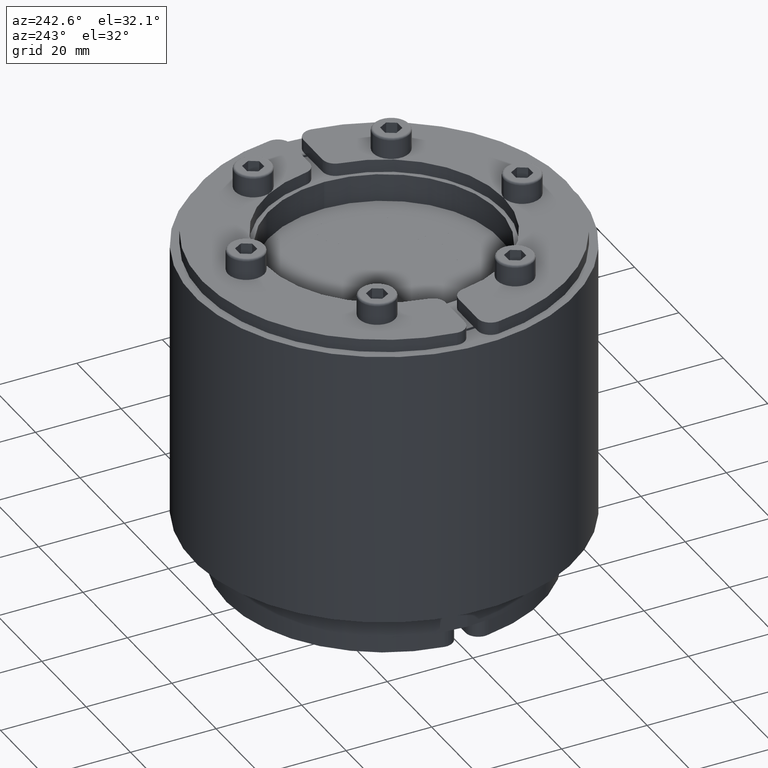
[diagram: clean part render]
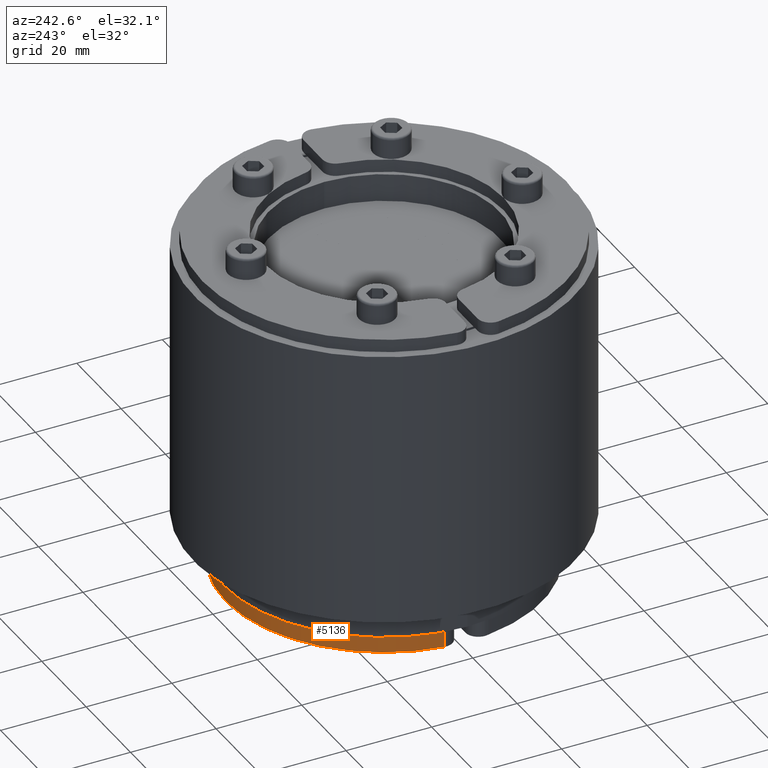
[diagram: same view with one face highlighted and labeled with its STEP entity id]
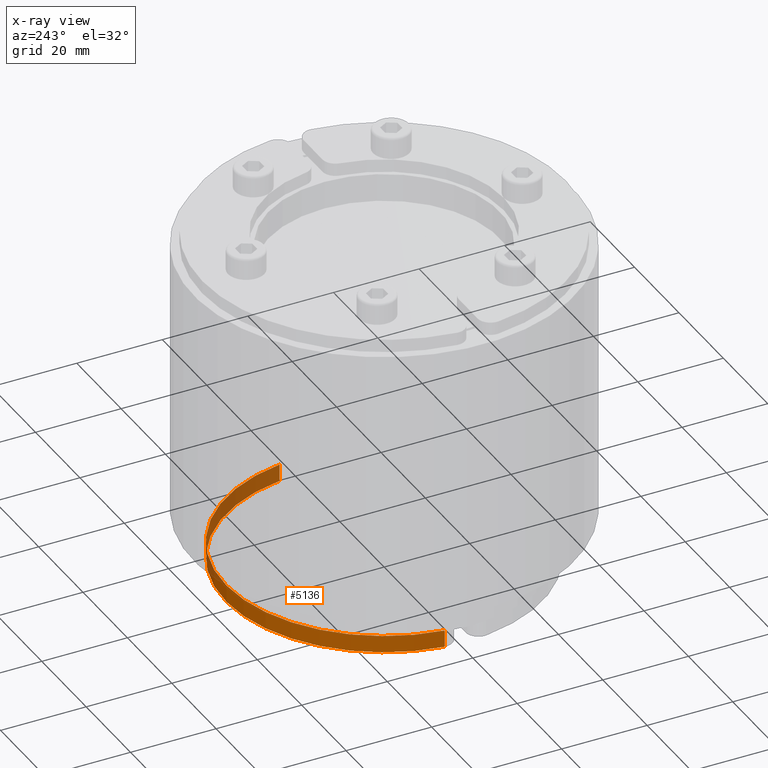
[diagram: x-ray of the same camera — body ghosted, the highlighted face saturated]
A machine part, auxiliary view. The second image highlights one B-rep face of the part: STEP entity #5136.
The next image is the same camera in x-ray: the body ghosted, the highlighted face saturated — about 27% of this face is hidden behind the body in this view.
In plain terms, the highlighted cylindrical surface (partial cylindrical patch) has radius 37 mm, axis along (-0, 0, -1).
Its self-contained STEP definition (entity closure, byte-faithful):
#5076=CARTESIAN_POINT('',(76.868884107341614,33.462043935240352,0.0));
#5077=VERTEX_POINT('',#5076);
#5086=CARTESIAN_POINT('',(76.868884107341614,33.462043935240352,4.0));
#5087=VERTEX_POINT('',#5086);
#5095=CARTESIAN_POINT('',(76.868884107341614,33.462043935240352,0.0));
#5096=DIRECTION('',(0.0,0.0,1.0));
#5097=VECTOR('',#5096,4.0);
#5098=LINE('',#5095,#5097);
#5099=EDGE_CURVE('',#5077,#5087,#5098,.T.);
#5104=CARTESIAN_POINT('',(40.273814220591603,38.921060328683666,0.0));
#5105=DIRECTION('',(0.0,0.0,1.0));
#5106=DIRECTION('',(0.991202652822286,0.13235294117647,0.0));
#5107=AXIS2_PLACEMENT_3D('',#5104,#5105,#5106);
#5108=CYLINDRICAL_SURFACE('',#5107,37.0);
#5109=CARTESIAN_POINT('',(3.599316066166989,34.024001505154288,0.0));
#5110=VERTEX_POINT('',#5109);
#5111=CARTESIAN_POINT('',(40.273814220591603,38.921060328683666,0.0));
#5112=DIRECTION('',(0.0,0.0,-1.0));
#5113=DIRECTION('',(0.991202652822286,0.13235294117647,0.0));
#5114=AXIS2_PLACEMENT_3D('',#5111,#5112,#5113);
#5115=CIRCLE('',#5114,37.0);
#5116=EDGE_CURVE('',#5077,#5110,#5115,.T.);
#5117=ORIENTED_EDGE('',*,*,#5116,.F.);
#5118=ORIENTED_EDGE('',*,*,#5099,.T.);
#5119=CARTESIAN_POINT('',(3.599316066166989,34.024001505154288,4.0));
#5120=VERTEX_POINT('',#5119);
#5121=CARTESIAN_POINT('',(40.273814220591603,38.921060328683666,4.0));
#5122=DIRECTION('',(0.0,0.0,1.0));
#5123=DIRECTION('',(0.991202652822286,0.13235294117647,0.0));
#5124=AXIS2_PLACEMENT_3D('',#5121,#5122,#5123);
#5125=CIRCLE('',#5124,37.0);
#5126=EDGE_CURVE('',#5120,#5087,#5125,.T.);
#5127=ORIENTED_EDGE('',*,*,#5126,.F.);
#5128=CARTESIAN_POINT('',(3.599316066166989,34.024001505154288,0.0));
#5129=DIRECTION('',(0.0,0.0,1.0));
#5130=VECTOR('',#5129,4.0);
#5131=LINE('',#5128,#5130);
#5132=EDGE_CURVE('',#5110,#5120,#5131,.T.);
#5133=ORIENTED_EDGE('',*,*,#5132,.F.);
#5134=EDGE_LOOP('',(#5117,#5118,#5127,#5133));
#5135=FACE_OUTER_BOUND('',#5134,.T.);
#5136=ADVANCED_FACE('',(#5135),#5108,.T.);